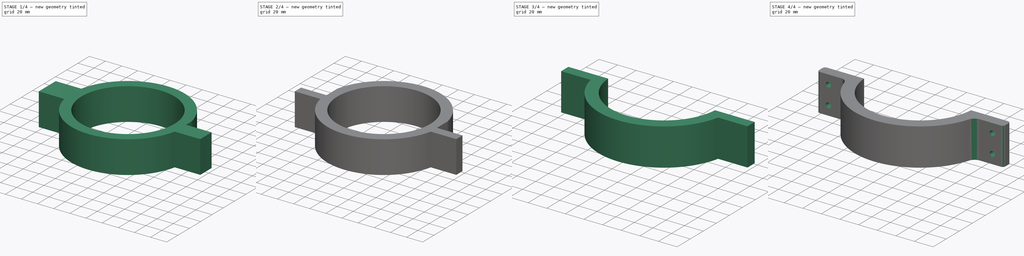
[diagram: build sequence overview — one tinted view per stage of 4, left to right]
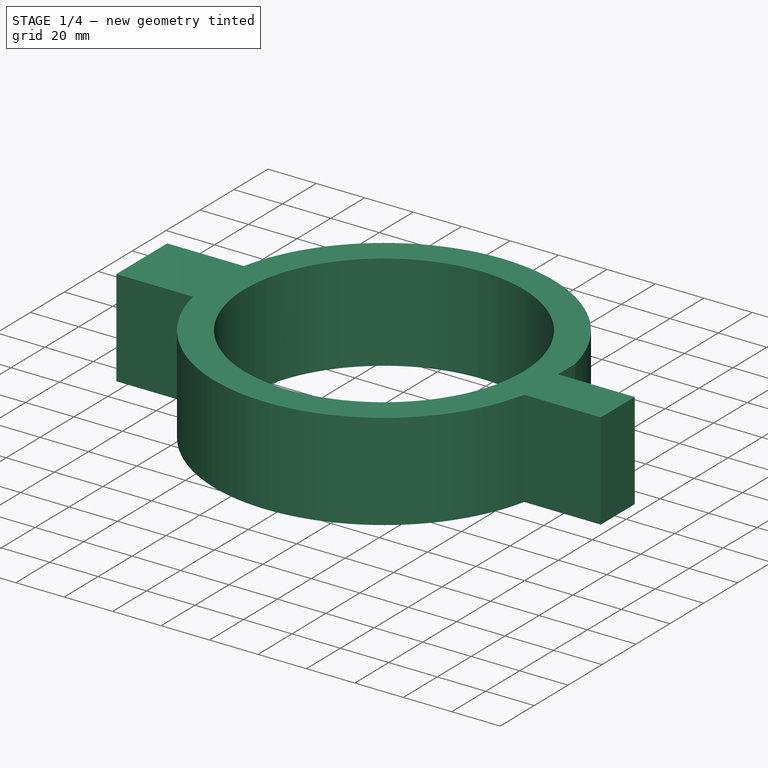
[diagram: stage 1 of 4 — iso view after this stage's code; geometry added in this stage tinted green]
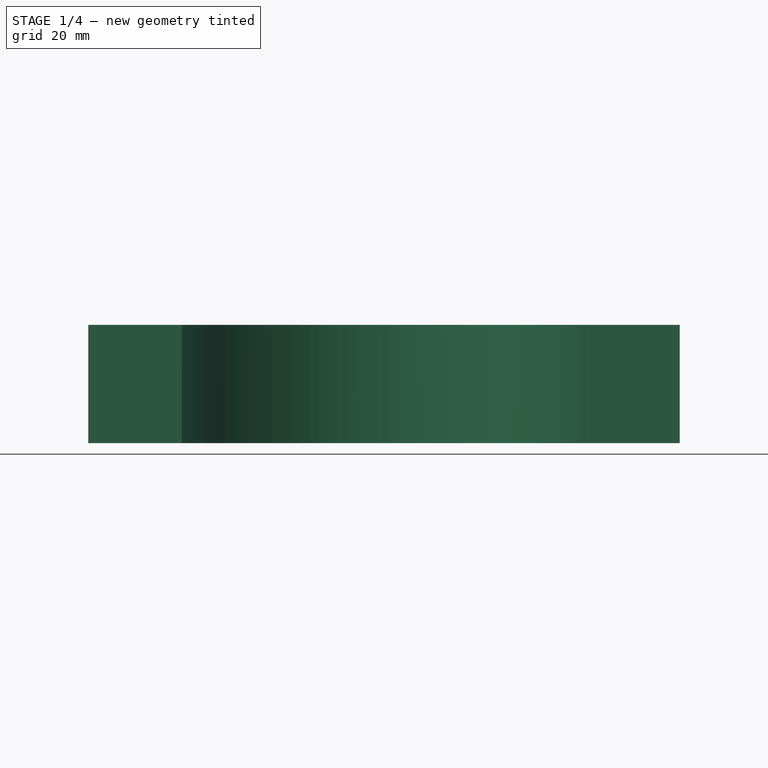
[diagram: stage 1 of 4 — front view after this stage's code; geometry added in this stage tinted green]
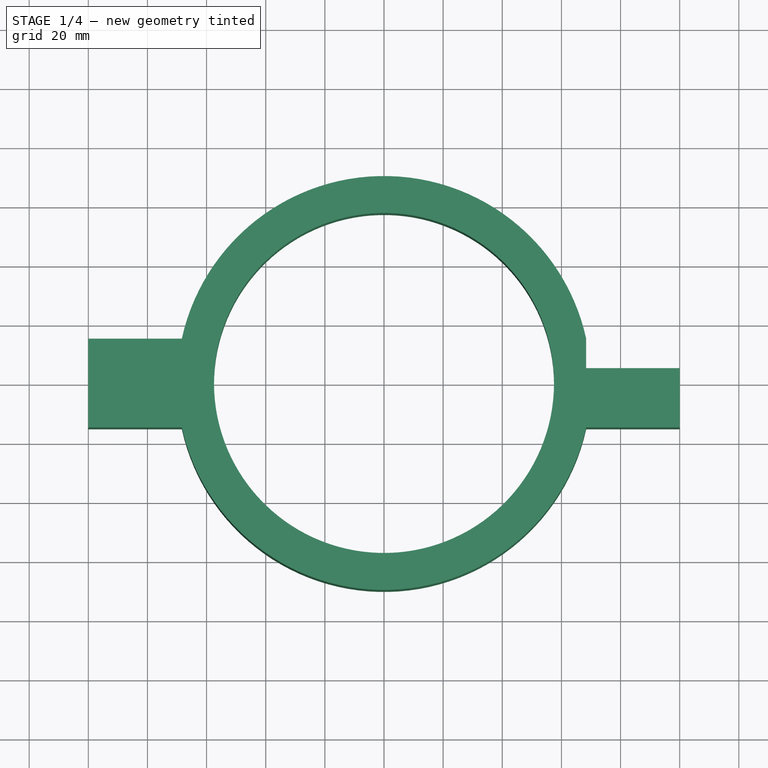
[diagram: stage 1 of 4 — top view after this stage's code; geometry added in this stage tinted green]
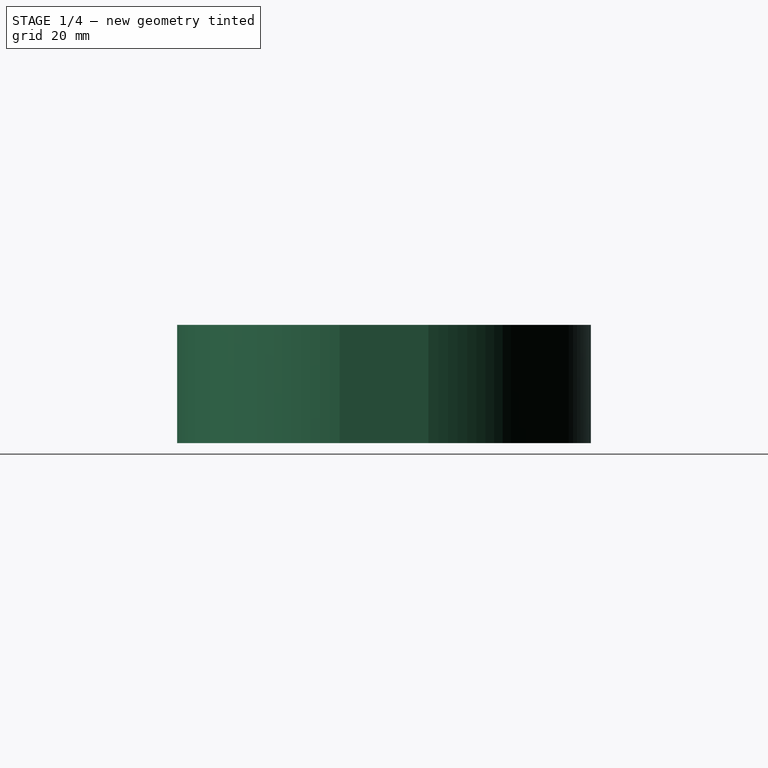
[diagram: stage 1 of 4 — right view after this stage's code; geometry added in this stage tinted green]
FCSTD DOCUMENT  (FreeCAD 1.0R39109 (Git))
Label: LOCK_V1_JETT
License: All rights reserved
LicenseURL: https://en.wikipedia.org/wiki/All_rights_reserved
objects: PartDesign::Pocket×7, Sketcher::SketchObject×6, PartDesign::Pad×3, PartDesign::Fillet×2, PartDesign::Body×1
note: 49 computed .brp shape members not serialized (recipe doc carries the construction recipe); baked Part::Feature solids carry a one-line shape summary decoded from their .brp

FEATURE [Sketcher::SketchObject] Sketch
  ArcFitTolerance = 1e-06
  AttachmentSupport = -> [XY_Plane]
  FullyConstrained = true
  MakeInternals = false
  MapMode = 5
  sketch-geometry (2):
    g0: Circle CenterX=0 CenterY=0 CenterZ=0 NormalX=0 NormalY=0 NormalZ=1 AngleXU=0 Radius=57.5
    g1: Circle CenterX=0 CenterY=0 CenterZ=0 NormalX=0 NormalY=0 NormalZ=1 AngleXU=0 Radius=70
  constraints (4):
    c: Diameter(g0) = 115
    c: Coincident(g0,g-1)
    c: Diameter(g1) = 140
    c: Coincident(g1,g0)
FEATURE [PartDesign::Pad] Pad
  Direction = (0,0,1)
  Length = 40
  Length2 = 10
  Profile = -> Sketch
  ReferenceAxis = -> Sketch [N_Axis]
  Refine = true
  Suppressed = false
  Type = 0
FEATURE [Sketcher::SketchObject] Sketch001
  ArcFitTolerance = 1e-06
  AttachmentSupport = -> [Pad]
  FullyConstrained = true
  MakeInternals = false
  MapMode = 5
  Placement = pos=(0,0,40) rot=(0,0,1;0rad)
  sketch-geometry (8):
    g0: LineSegment StartX=-100 StartY=15 StartZ=0 EndX=-100 EndY=-15 EndZ=0
    g1: LineSegment StartX=-100 StartY=-15 StartZ=0 EndX=-60 EndY=-15 EndZ=0
    g2: LineSegment StartX=-60 StartY=-15 StartZ=0 EndX=-60 EndY=15 EndZ=0
    g3: LineSegment StartX=-60 StartY=15 StartZ=0 EndX=-100 EndY=15 EndZ=0
    g4: LineSegment StartX=60 StartY=15 StartZ=0 EndX=60 EndY=-15 EndZ=0
    g5: LineSegment StartX=60 StartY=-15 StartZ=0 EndX=100 EndY=-15 EndZ=0
    g6: LineSegment StartX=100 StartY=-15 StartZ=0 EndX=100 EndY=15 EndZ=0
    g7: LineSegment StartX=100 StartY=15 StartZ=0 EndX=60 EndY=15 EndZ=0
  constraints (24):
    c: Coincident(g0,g1)
    c: Coincident(g1,g2)
    c: Coincident(g2,g3)
    c: Coincident(g3,g0)
    c: Vertical(g0)
    c: Vertical(g2)
    c: Horizontal(g1)
    c: Horizontal(g3)
    c: Distance(g0,g2) = 40
    c: Distance(g1,g3) = 30
    c: DistanceX(g2,g-1) = 60
    c: DistanceY(g1,g-1) = 15
    c: Coincident(g4,g5)
    c: Coincident(g5,g6)
    c: Coincident(g6,g7)
    c: Coincident(g7,g4)
    c: Vertical(g4)
    c: Vertical(g6)
    c: Horizontal(g5)
    c: Horizontal(g7)
    c: Distance(g4,g6) = 40
    c: Distance(g5,g7) = 30
    c: DistanceX(g-1,g4) = 60
    c: DistanceY(g-1,g4) = 15
FEATURE [PartDesign::Pad] Pad001
  BaseFeature = -> Pad
  Direction = (0,0,1)
  Length = 40
  Length2 = 10
  Profile = -> Sketch001
  ReferenceAxis = -> Sketch001 [N_Axis]
  Refine = true
  Reversed = true
  Suppressed = false
  Type = 0
FEATURE [PartDesign::Pocket] Pocket
  BaseFeature = -> Pad001
  Direction = (0,-1,0)
  Length = 10
  Length2 = 5
  Profile = -> Pad001 [Face1]
  Refine = true
  Suppressed = false
  Type = 0
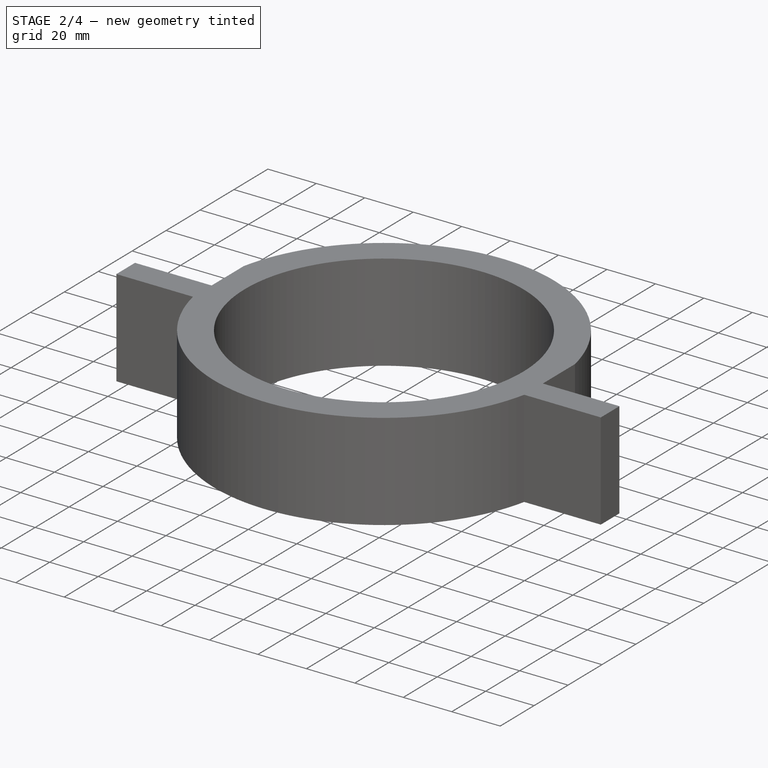
[diagram: stage 2 of 4 — iso view after this stage's code; geometry added in this stage tinted green]
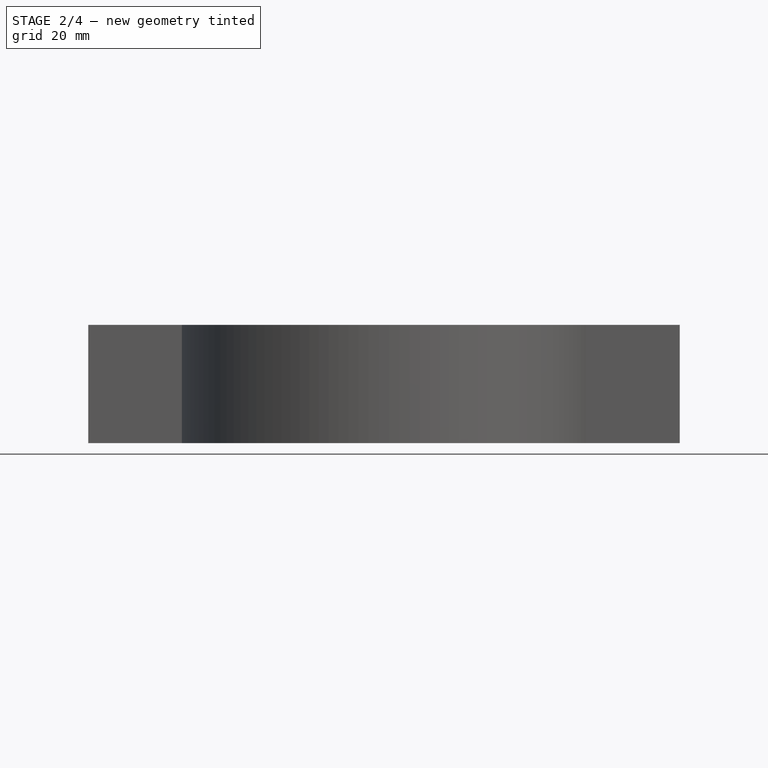
[diagram: stage 2 of 4 — front view after this stage's code; geometry added in this stage tinted green]
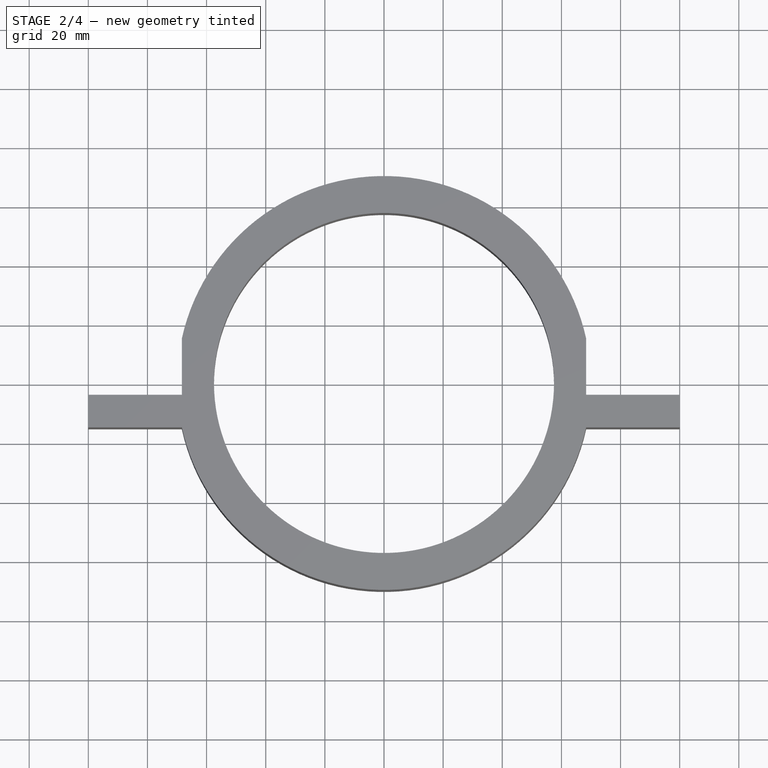
[diagram: stage 2 of 4 — top view after this stage's code; geometry added in this stage tinted green]
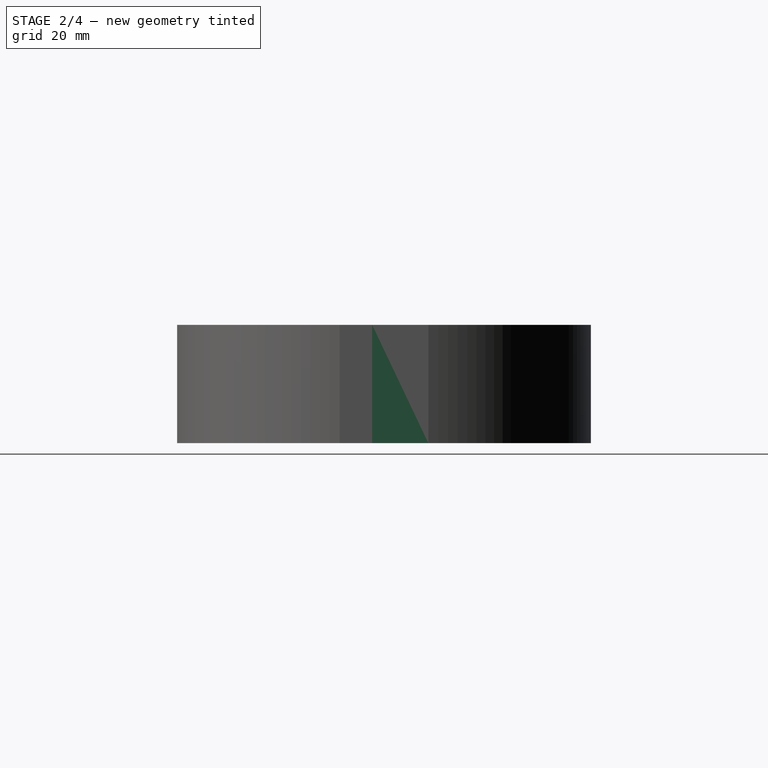
[diagram: stage 2 of 4 — right view after this stage's code; geometry added in this stage tinted green]
FEATURE [PartDesign::Pocket] Pocket001
  BaseFeature = -> Pocket
  Direction = (0,-1,0)
  Length = 10
  Length2 = 5
  Profile = -> Pocket [Face3]
  Refine = true
  Suppressed = false
  Type = 0
FEATURE [PartDesign::Pocket] Pocket002
  BaseFeature = -> Pocket001
  Direction = (0,-1,0)
  Length = 9
  Length2 = 5
  Profile = -> Pocket001 [Face6]
  Refine = true
  Suppressed = false
  Type = 0
FEATURE [PartDesign::Pocket] Pocket003
  BaseFeature = -> Pocket002
  Direction = (0,-1,0)
  Length = 9
  Length2 = 5
  Profile = -> Pocket002 [Face11]
  Refine = true
  Suppressed = false
  Type = 0
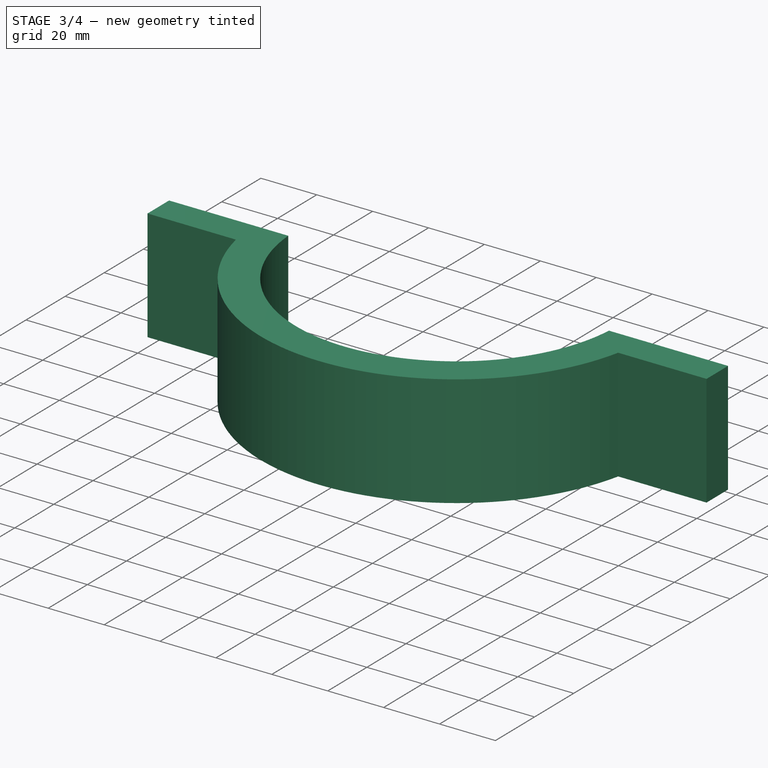
[diagram: stage 3 of 4 — iso view after this stage's code; geometry added in this stage tinted green]
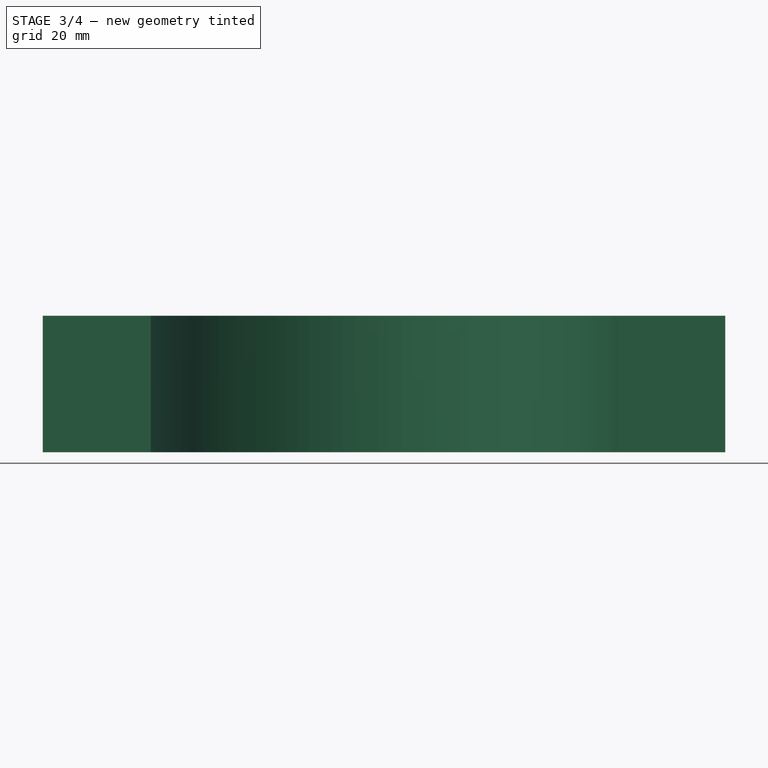
[diagram: stage 3 of 4 — front view after this stage's code; geometry added in this stage tinted green]
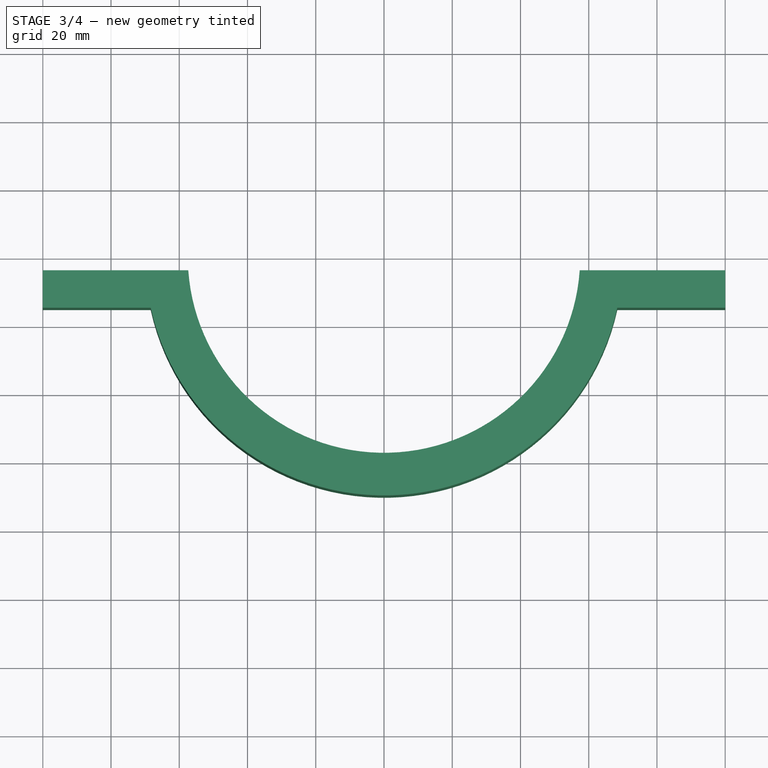
[diagram: stage 3 of 4 — top view after this stage's code; geometry added in this stage tinted green]
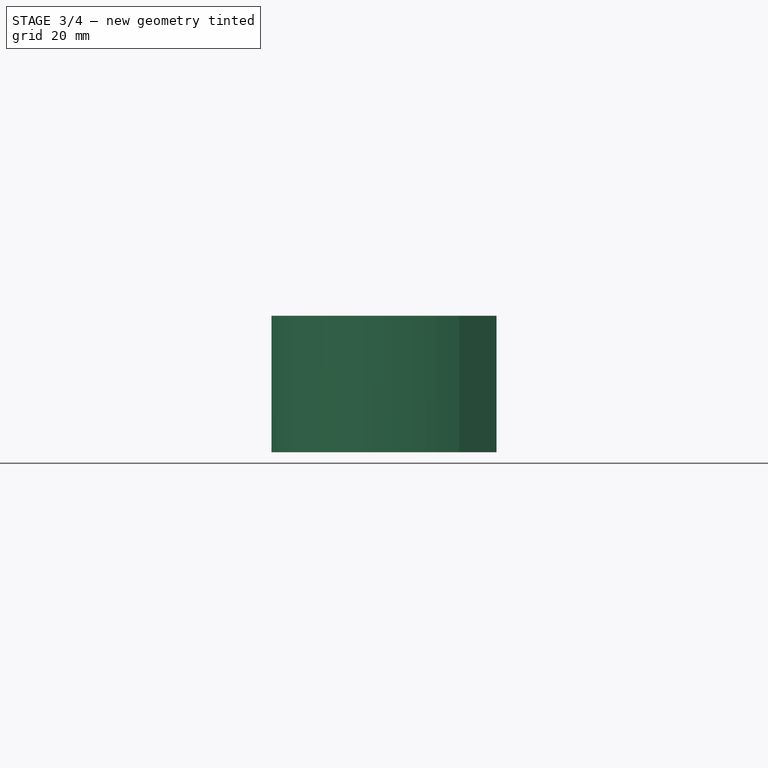
[diagram: stage 3 of 4 — right view after this stage's code; geometry added in this stage tinted green]
FEATURE [Sketcher::SketchObject] Sketch002
  ArcFitTolerance = 1e-06
  AttachmentSupport = -> [Pocket003]
  FullyConstrained = true
  MakeInternals = false
  MapMode = 5
  Placement = pos=(0,0,0) rot=(1,0,0;3.14159rad)
  sketch-geometry (1):
    g0: Circle CenterX=0 CenterY=0 CenterZ=0 NormalX=0 NormalY=0 NormalZ=1 AngleXU=0 Radius=70
  constraints (2):
    c: Diameter(g0) = 140
    c: Coincident(g0,g-1)
FEATURE [PartDesign::Pad] Pad002
  BaseFeature = -> Pocket003
  Direction = (0,0,-1)
  Length = 40
  Length2 = 10
  Profile = -> Sketch002
  ReferenceAxis = -> Sketch002 [N_Axis]
  Refine = true
  Reversed = true
  Suppressed = false
  Type = 0
FEATURE [Sketcher::SketchObject] Sketch003
  ArcFitTolerance = 1e-06
  AttachmentSupport = -> [Pad002]
  FullyConstrained = true
  MakeInternals = false
  MapMode = 5
  Placement = pos=(0,0,0) rot=(1,0,0;3.14159rad)
  sketch-geometry (1):
    g0: Circle CenterX=0 CenterY=0 CenterZ=0 NormalX=0 NormalY=0 NormalZ=1 AngleXU=0 Radius=57.5
  constraints (2):
    c: Diameter(g0) = 115
    c: Coincident(g0,g-1)
FEATURE [PartDesign::Pocket] Pocket004
  BaseFeature = -> Pad002
  Direction = (0,0,1)
  Length = 522
  Length2 = 5
  Profile = -> Sketch003
  ReferenceAxis = -> Sketch003 [N_Axis]
  Refine = true
  Suppressed = false
  Type = 0
FEATURE [Sketcher::SketchObject] Sketch004
  ArcFitTolerance = 1e-06
  AttachmentSupport = -> [Pocket004]
  FullyConstrained = true
  MakeInternals = false
  MapMode = 5
  Placement = pos=(0,0,0) rot=(1,0,0;3.14159rad)
  sketch-geometry (4):
    g0: LineSegment StartX=-75 StartY=4 StartZ=0 EndX=-75 EndY=-96 EndZ=0
    g1: LineSegment StartX=-75 StartY=-96 StartZ=0 EndX=75 EndY=-96 EndZ=0
    g2: LineSegment StartX=75 StartY=-96 StartZ=0 EndX=75 EndY=4 EndZ=0
    g3: LineSegment StartX=75 StartY=4 StartZ=0 EndX=-75 EndY=4 EndZ=0
  constraints (12):
    c: Coincident(g0,g1)
    c: Coincident(g1,g2)
    c: Coincident(g2,g3)
    c: Coincident(g3,g0)
    c: Vertical(g0)
    c: Vertical(g2)
    c: Horizontal(g1)
    c: Horizontal(g3)
    c: DistanceX(g3,g3) = 150
    c: DistanceX(g0,g-1) = 75
    c: DistanceY(g-1,g0) = 4
    c: DistanceY(g0,g0) = 100
FEATURE [PartDesign::Pocket] Pocket005
  BaseFeature = -> Pocket004
  Direction = (0,0,1)
  Length = 40
  Length2 = 5
  Profile = -> Sketch004
  ReferenceAxis = -> Sketch004 [N_Axis]
  Refine = true
  Suppressed = false
  Type = 0
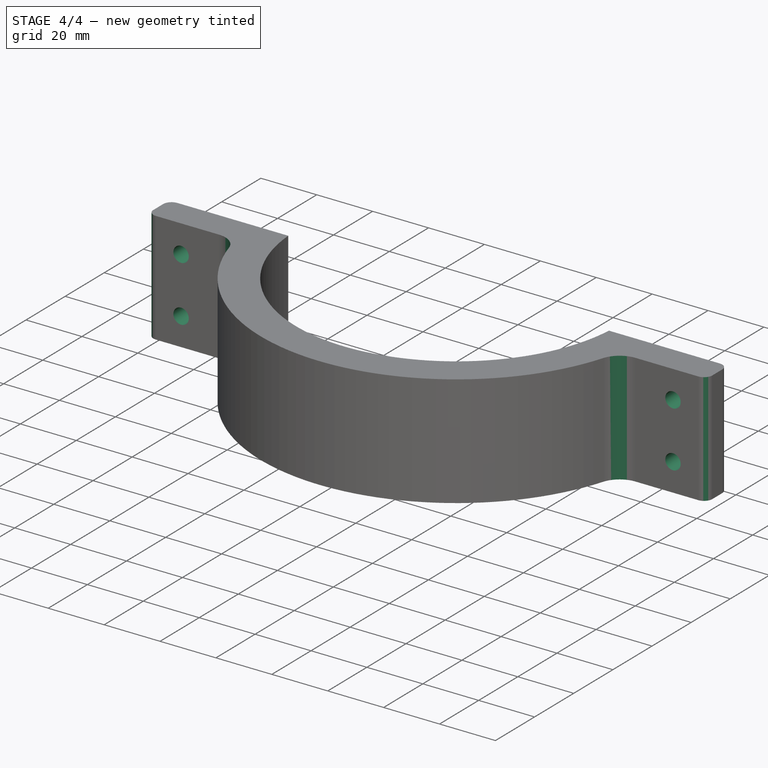
[diagram: stage 4 of 4 — iso view after this stage's code; geometry added in this stage tinted green]
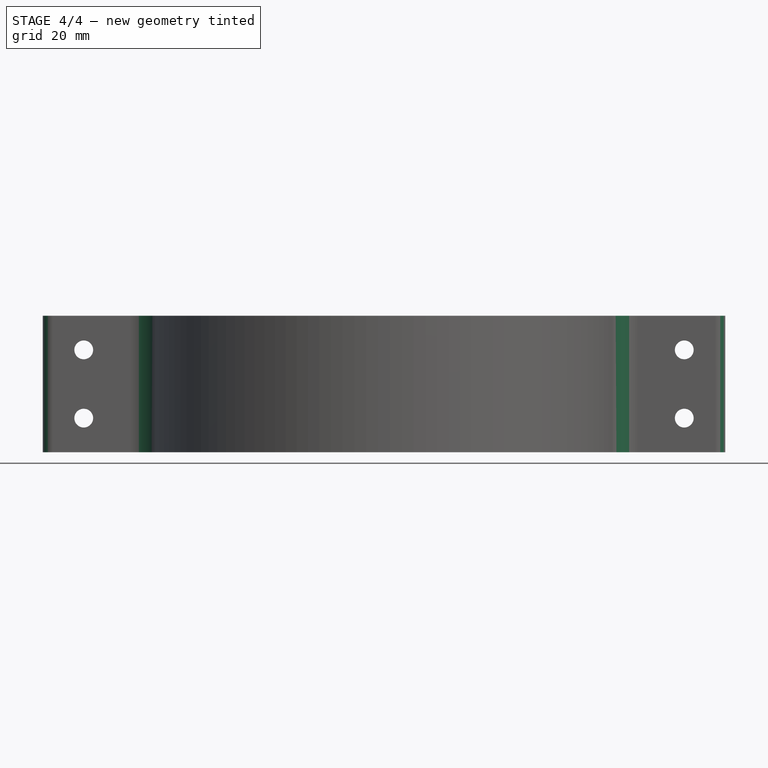
[diagram: stage 4 of 4 — front view after this stage's code; geometry added in this stage tinted green]
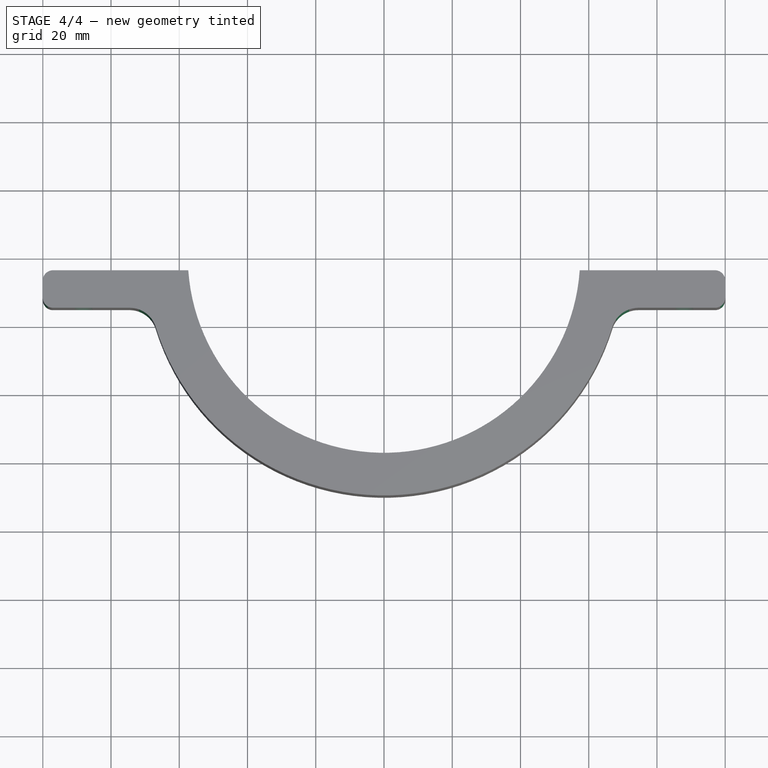
[diagram: stage 4 of 4 — top view after this stage's code; geometry added in this stage tinted green]
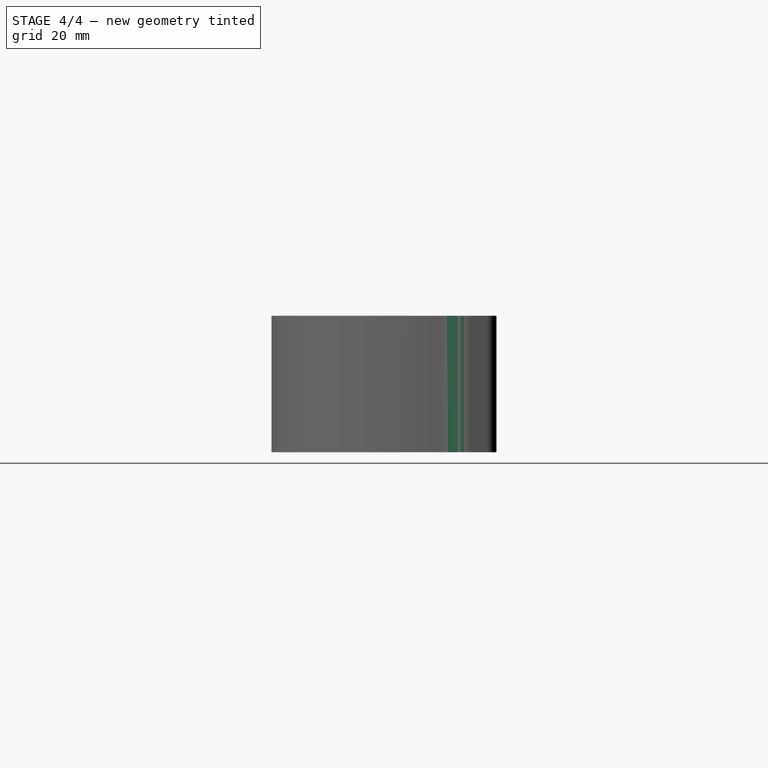
[diagram: stage 4 of 4 — right view after this stage's code; geometry added in this stage tinted green]
FEATURE [PartDesign::Fillet] Fillet
  Base = -> Pocket005 [Edge3,Edge1]
  BaseFeature = -> Pocket005
  Radius = 8
  Refine = true
  SupportTransform = false
  Suppressed = false
  UseAllEdges = false
FEATURE [PartDesign::Fillet] Fillet001
  Base = -> Fillet [Edge29,Edge30,Edge25,Edge26]
  BaseFeature = -> Fillet
  Radius = 3
  Refine = true
  SupportTransform = false
  Suppressed = false
  UseAllEdges = false
FEATURE [Sketcher::SketchObject] Sketch005
  ArcFitTolerance = 1e-06
  AttachmentSupport = -> [Fillet001]
  FullyConstrained = true
  MakeInternals = false
  MapMode = 5
  Placement = pos=(0,-15,0) rot=(1,0,0;1.5708rad)
  sketch-geometry (4):
    g0: Circle CenterX=-88 CenterY=30 CenterZ=0 NormalX=0 NormalY=0 NormalZ=1 AngleXU=0 Radius=2.75
    g1: Circle CenterX=-88 CenterY=10 CenterZ=0 NormalX=0 NormalY=0 NormalZ=1 AngleXU=0 Radius=2.75
    g2: Circle CenterX=88 CenterY=30 CenterZ=0 NormalX=0 NormalY=0 NormalZ=1 AngleXU=0 Radius=2.75
    g3: Circle CenterX=88 CenterY=10 CenterZ=0 NormalX=0 NormalY=0 NormalZ=1 AngleXU=0 Radius=2.75
  constraints (12):
    c: Diameter(g0) = 5.5
    c: Diameter(g1) = 5.5
    c: Diameter(g2) = 5.5
    c: Diameter(g3) = 5.5
    c: DistanceX(g-1,g3) = 88
    c: DistanceX(g3,g2) = 0
    c: DistanceX(g1,g-1) = 88
    c: DistanceX(g0,g1) = 0
    c: DistanceY(g1,g0) = 20
    c: DistanceY(g-1,g1) = 10
    c: DistanceY(g3,g1) = 0
    c: DistanceY(g0,g2) = 0
FEATURE [PartDesign::Pocket] Pocket006
  BaseFeature = -> Fillet001
  Direction = (0,1,-2e-16)
  Length = 20
  Length2 = 5
  Profile = -> Sketch005
  ReferenceAxis = -> Sketch005 [N_Axis]
  Refine = true
  Suppressed = false
  Type = 0
FEATURE [PartDesign::Body] Body
  AllowCompound = false
  Group = -> [Sketch,Pad,Sketch001,Pad001,Pocket,Pocket001,Pocket002,Pocket003,Sketch002,Pad002,Sketch003,Pocket004,Sketch004,Pocket005,Fillet,Fillet001,Sketch005,Pocket006]
  Origin = -> Origin
  Tip = -> Pocket006
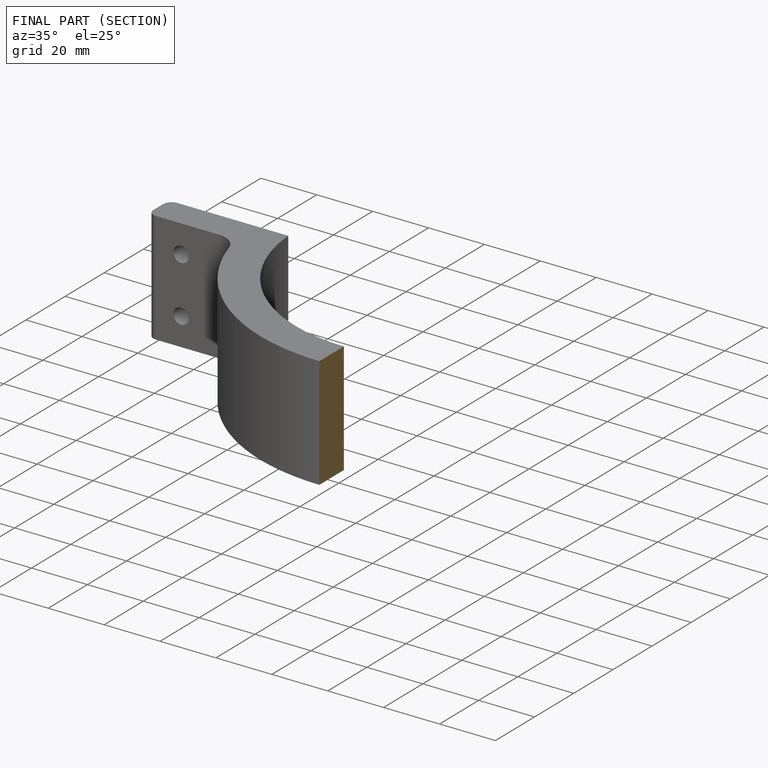
[diagram: finished part — half-section view (interior)]
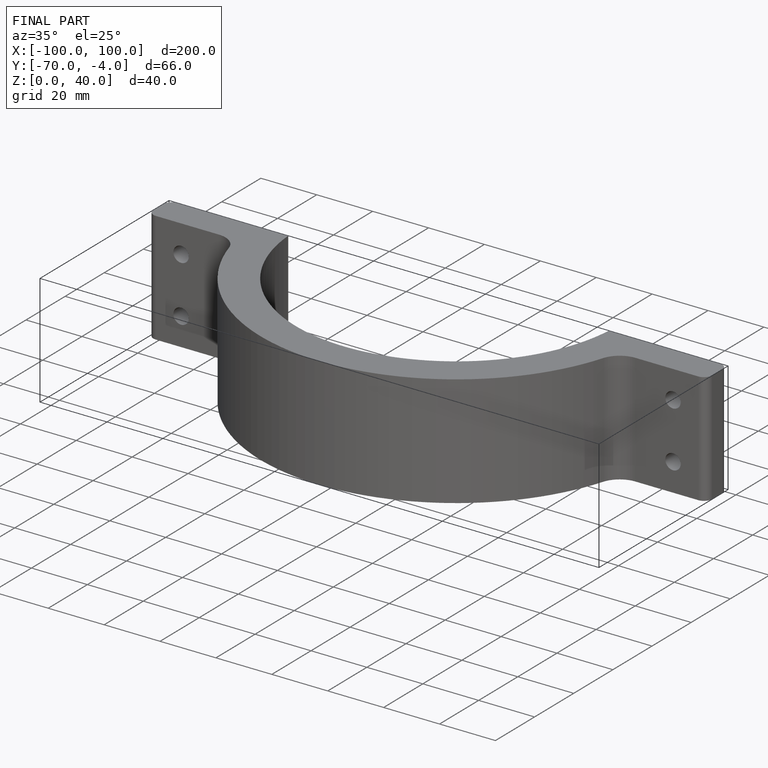
[diagram: finished part — iso view with bounding-box wireframe]
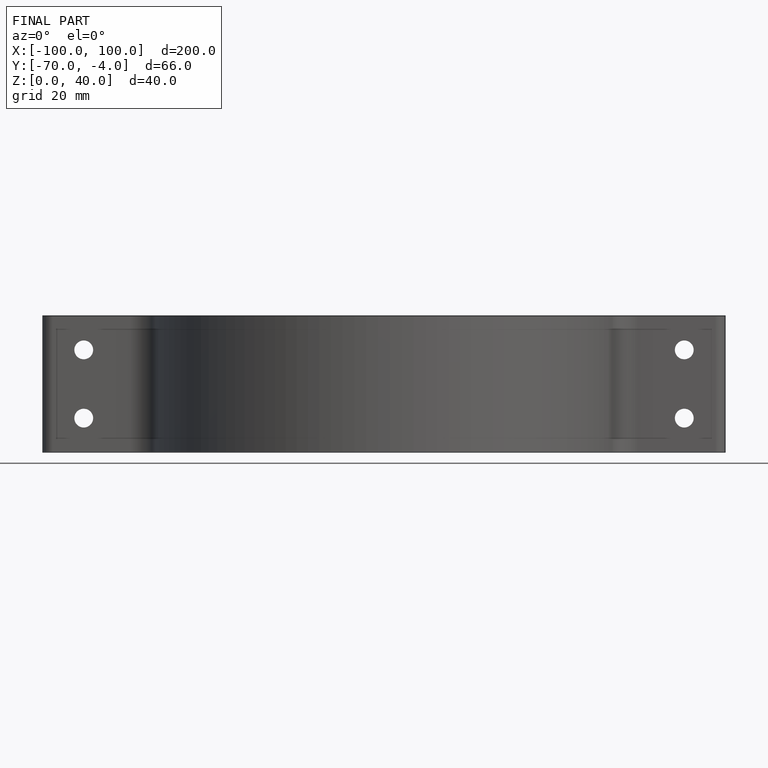
[diagram: finished part — front view with bounding-box wireframe]
